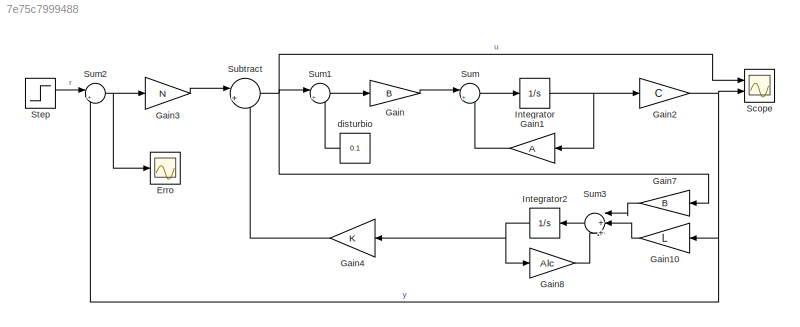
MODEL slx_7e75c7999488
KIND model
CONFIG AbsTol = auto
CONFIG EnableMultiTasking = off
CONFIG FixedStep = auto
CONFIG MaxStep = auto
CONFIG MinStep = auto
CONFIG RelTol = 1e-3
CONFIG SampleTimeConstraint = Unconstrained
CONFIG Solver = VariableStepAuto
CONFIG SolverName = VariableStepAuto
CONFIG StartTime = 0.0
CONFIG StopTime = 50
BLOCK [Scope] Erro
  Floating = off
  NumInputPorts = 1
  Ports = [1]
  ScopeSpecificationString = Simulink.scopes.TimeScopeBlockCfg('CurrentConfiguration', extmgr.ConfigurationSet(extmgr.Configuration('Core','General UI',true),extmgr.Configuration('Core','Source UI',true),extmgr.Configuration('Sources','WiredSimulink',true,'DataLoggingVariableName','ScopeData1'),extmgr.Configuration('Visuals','Time Domain',true,'SerializedDisplays',{struct('MinYLimReal','-0.35149','MaxYLimReal','1.41517','YLab...<+1402ch>
BLOCK [Gain] Gain
  Gain = B
  Multiplication = Matrix(K*u)
BLOCK [Gain] Gain1
  Gain = A
  Multiplication = Matrix(K*u)
  NameLocation = top
BLOCK [Gain] Gain10
  Gain = L
  Multiplication = Matrix(K*u)
  NameLocation = top
BLOCK [Gain] Gain2
  Gain = C
  Multiplication = Matrix(K*u)
BLOCK [Gain] Gain3
  Gain = N
  Multiplication = Matrix(K*u)
BLOCK [Gain] Gain4
  Gain = K
  Multiplication = Matrix(K*u)
BLOCK [Gain] Gain7
  Gain = B
  Multiplication = Matrix(K*u)
  NameLocation = top
BLOCK [Gain] Gain8
  Gain = Alc
  Multiplication = Matrix(K*u)
BLOCK [Integrator] Integrator
  Ports = [1, 1]
BLOCK [Integrator] Integrator2
  NameLocation = top
  Ports = [1, 1]
BLOCK [Scope] Scope
  Floating = off
  NumInputPorts = 2
  Ports = [2]
  ScopeSpecificationString = Simulink.scopes.TimeScopeBlockCfg('CurrentConfiguration', extmgr.ConfigurationSet(extmgr.Configuration('Core','General UI',true),extmgr.Configuration('Core','Source UI',true),extmgr.Configuration('Sources','WiredSimulink',true,'DataLoggingVariableName','ScopeData1'),extmgr.Configuration('Visuals','Time Domain',true,'SerializedDisplays',{struct('MinYLimReal','-0.05926','MaxYLimReal','0.01747','YLab...<+1444ch>
BLOCK [Step] Step
  SampleTime = 0
BLOCK [Sum] Subtract
  Inputs = |+-
  Ports = [2, 1]
BLOCK [Sum] Sum
  Inputs = |++
  Ports = [2, 1]
BLOCK [Sum] Sum1
  Inputs = |++
  Ports = [2, 1]
BLOCK [Sum] Sum2
  Inputs = |+-
  Ports = [2, 1]
BLOCK [Sum] Sum3
  Inputs = |+++
  NameLocation = top
  Ports = [3, 1]
BLOCK [Constant] disturbio
  NameLocation = top
  Value = 0.1
LINE Gain10:1 -> Sum3:2
LINE Gain1:1 -> Sum:2
NET Gain2:1 -> Gain10:1, Scope:2, Sum2:2
LINE Gain3:1 -> Subtract:1
LINE Gain4:1 -> Subtract:2
LINE Gain7:1 -> Sum3:1
LINE Gain8:1 -> Sum3:3
LINE Gain:1 -> Sum:1
NET Integrator2:1 -> Gain4:1, Gain8:1
NET Integrator:1 -> Gain1:1, Gain2:1
LINE Step:1 -> Sum2:1
NET Subtract:1 -> Gain7:1, Scope:1, Sum1:1
LINE Sum1:1 -> Gain:1
NET Sum2:1 -> Erro:1, Gain3:1
LINE Sum3:1 -> Integrator2:1
LINE Sum:1 -> Integrator:1
LINE disturbio:1 -> Sum1:2
note: NET lines group one-source signal fan-out (src -> all destinations, sorted); 1:1 wires keep LINE
